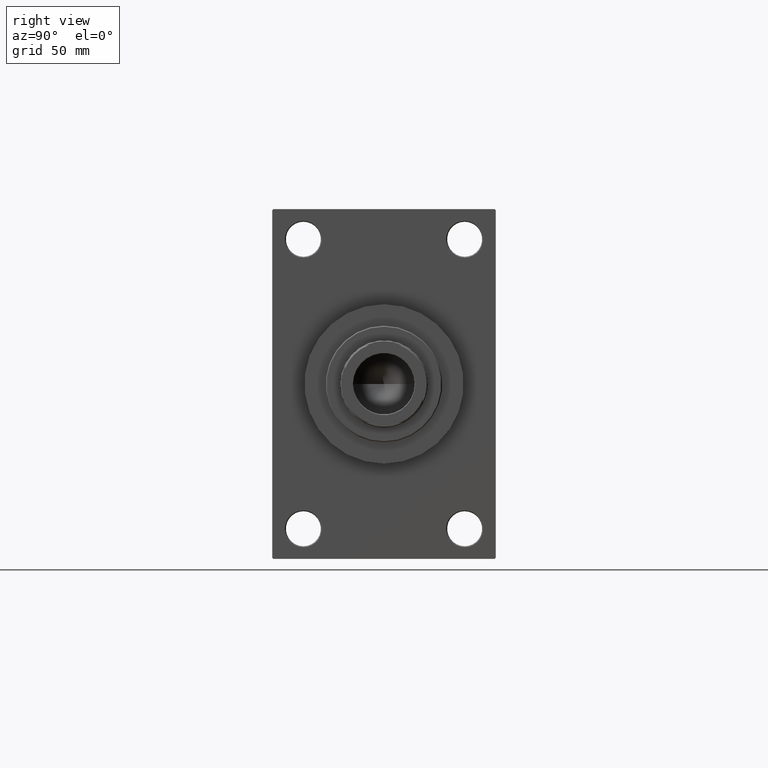
[diagram: clean part render]
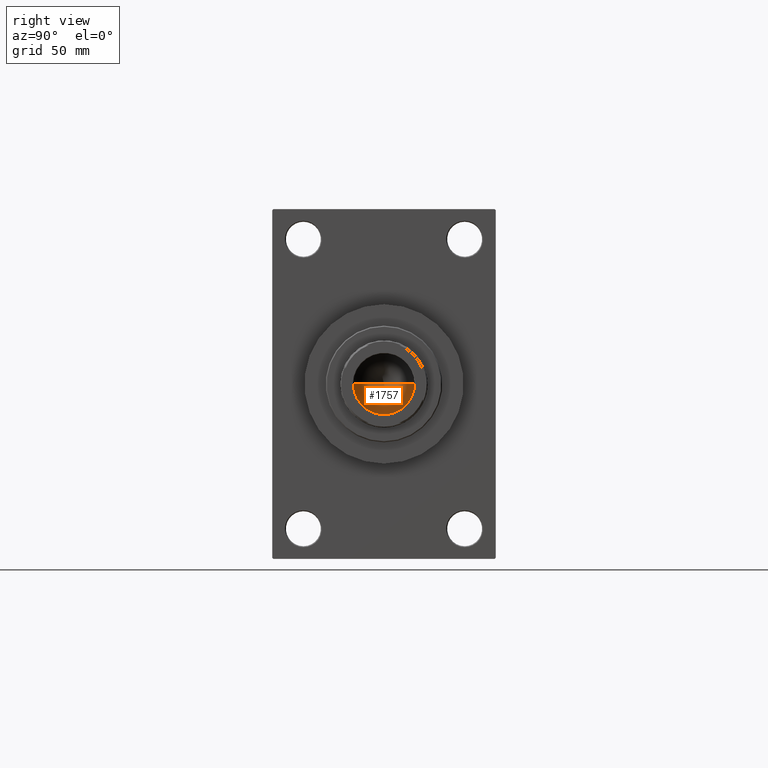
[diagram: same view with one face highlighted and labeled with its STEP entity id]
A machine part, right view. The second image highlights one B-rep face of the part: STEP entity #1757.
In plain terms, the highlighted conical surface has half-angle 59 deg.
Its self-contained STEP definition (entity closure, byte-faithful):
#1757 = ADVANCED_FACE ( 'NONE', ( #31267 ), #19156, .F. ) ;
#1904 = DIRECTION ( 'NONE',  ( -0.8571673007021118895, 1.049727191138618079E-16, 0.5150380749100549327 ) ) ;
#2249 = LINE ( 'NONE', #21069, #22129 ) ;
#2855 = LINE ( 'NONE', #6002, #22833 ) ;
#3508 = CARTESIAN_POINT ( 'NONE',  ( -15.74999999999998934, 1.928818708657080161E-15, 191.0000000000000000 ) ) ;
#5718 = ORIENTED_EDGE ( 'NONE', *, *, #23461, .F. ) ;
#6002 = CARTESIAN_POINT ( 'NONE',  ( -15.74999999999998934, 1.928818708657080161E-15, 191.0000000000000000 ) ) ;
#6142 = CARTESIAN_POINT ( 'NONE',  ( -1.497379240617067851E-14, 0.000000000000000000, 181.5364452503159214 ) ) ;
#7639 = CARTESIAN_POINT ( 'NONE',  ( 15.74999999999998934, 0.000000000000000000, 191.0000000000000000 ) ) ;
#9338 = DIRECTION ( 'NONE',  ( -0.000000000000000000, -0.000000000000000000, 1.000000000000000000 ) ) ;
#17047 = CARTESIAN_POINT ( 'NONE',  ( 0.000000000000000000, 0.000000000000000000, 191.0000000000000000 ) ) ;
#18867 = VERTEX_POINT ( 'NONE', #3508 ) ;
#19156 = CONICAL_SURFACE ( 'NONE', #19945, 15.74999999999998934, 1.029744258676653645 ) ;
#19945 = AXIS2_PLACEMENT_3D ( 'NONE', #17047, #9338, #27188 ) ;
#21069 = CARTESIAN_POINT ( 'NONE',  ( 15.74999999999998934, 0.000000000000000000, 191.0000000000000000 ) ) ;
#21886 = EDGE_CURVE ( 'NONE', #46954, #32028, #2249, .T. ) ;
#22129 = VECTOR ( 'NONE', #31675, 1000.000000000000000 ) ;
#22833 = VECTOR ( 'NONE', #1904, 1000.000000000000000 ) ;
#23461 = EDGE_CURVE ( 'NONE', #46954, #18867, #2855, .T. ) ;
#24850 = EDGE_LOOP ( 'NONE', ( #5718, #43519, #25853 ) ) ;
#25853 = ORIENTED_EDGE ( 'NONE', *, *, #35869, .T. ) ;
#26036 = DIRECTION ( 'NONE',  ( -0.000000000000000000, -0.000000000000000000, 1.000000000000000000 ) ) ;
#27188 = DIRECTION ( 'NONE',  ( 1.000000000000000000, 0.000000000000000000, 0.000000000000000000 ) ) ;
#27885 = CIRCLE ( 'NONE', #34020, 15.74999999999998934 ) ;
#29416 = DIRECTION ( 'NONE',  ( 1.000000000000000000, 0.000000000000000000, 0.000000000000000000 ) ) ;
#31267 = FACE_OUTER_BOUND ( 'NONE', #24850, .T. ) ;
#31675 = DIRECTION ( 'NONE',  ( 0.8571673007021118895, 0.000000000000000000, 0.5150380749100549327 ) ) ;
#32028 = VERTEX_POINT ( 'NONE', #7639 ) ;
#34020 = AXIS2_PLACEMENT_3D ( 'NONE', #36868, #26036, #29416 ) ;
#35869 = EDGE_CURVE ( 'NONE', #32028, #18867, #27885, .T. ) ;
#36868 = CARTESIAN_POINT ( 'NONE',  ( 0.000000000000000000, 0.000000000000000000, 191.0000000000000000 ) ) ;
#43519 = ORIENTED_EDGE ( 'NONE', *, *, #21886, .T. ) ;
#46954 = VERTEX_POINT ( 'NONE', #6142 ) ;